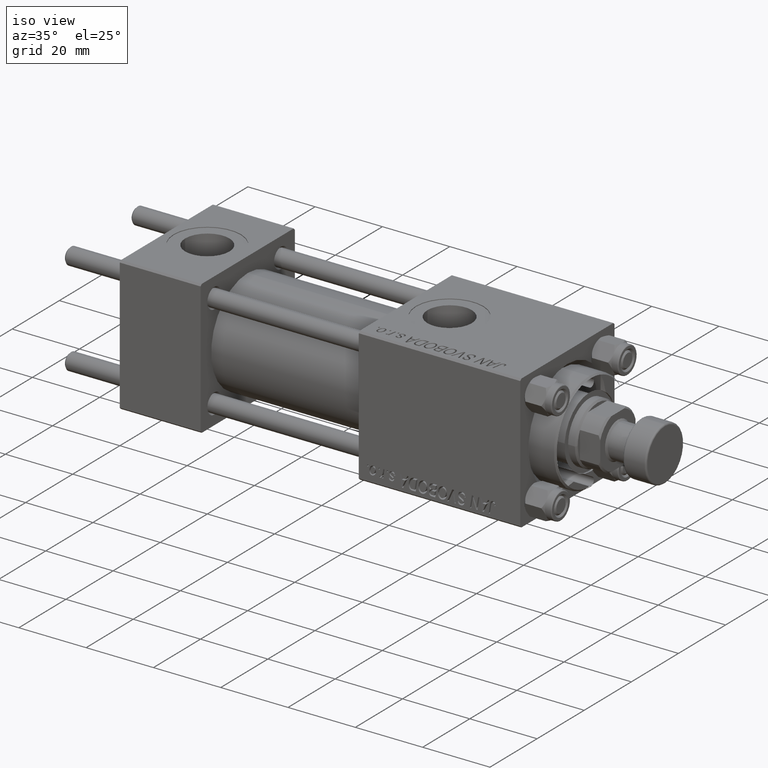
[diagram: clean part render]
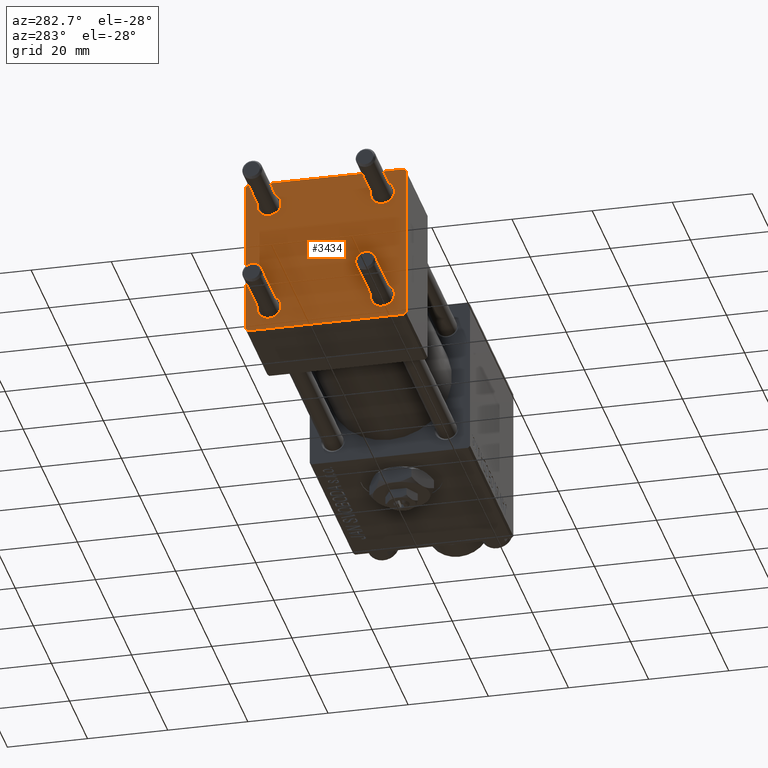
[diagram: tour spotlight — one face highlighted and labeled with its STEP entity id]
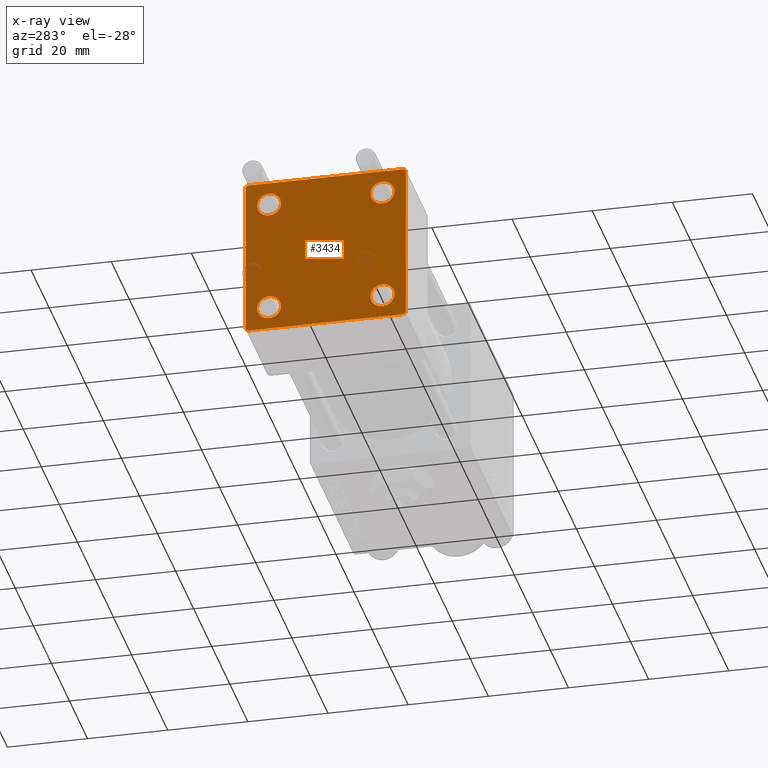
[diagram: x-ray of the same camera — body ghosted, this tour face saturated]
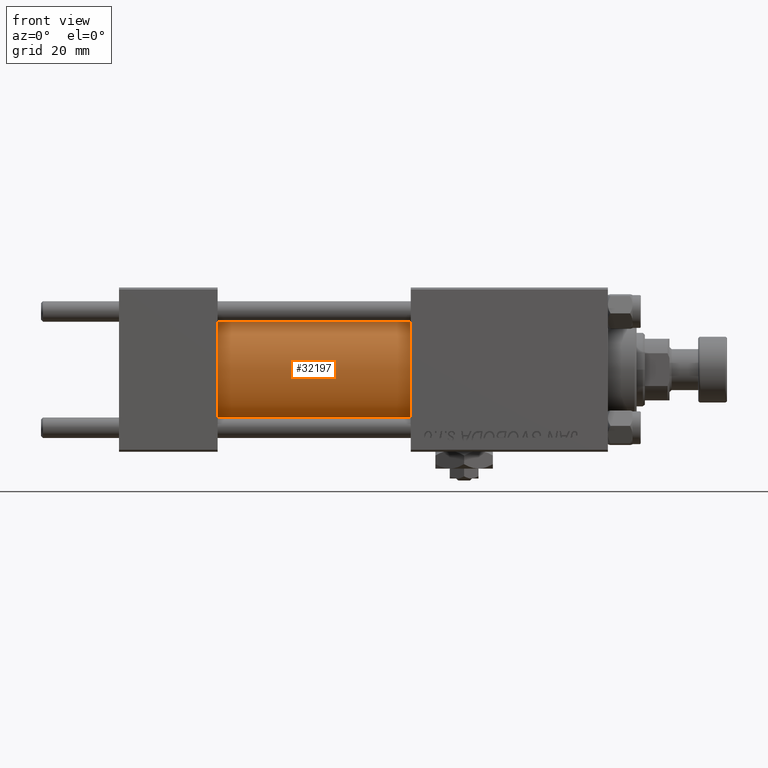
[diagram: tour spotlight — one face highlighted and labeled with its STEP entity id]
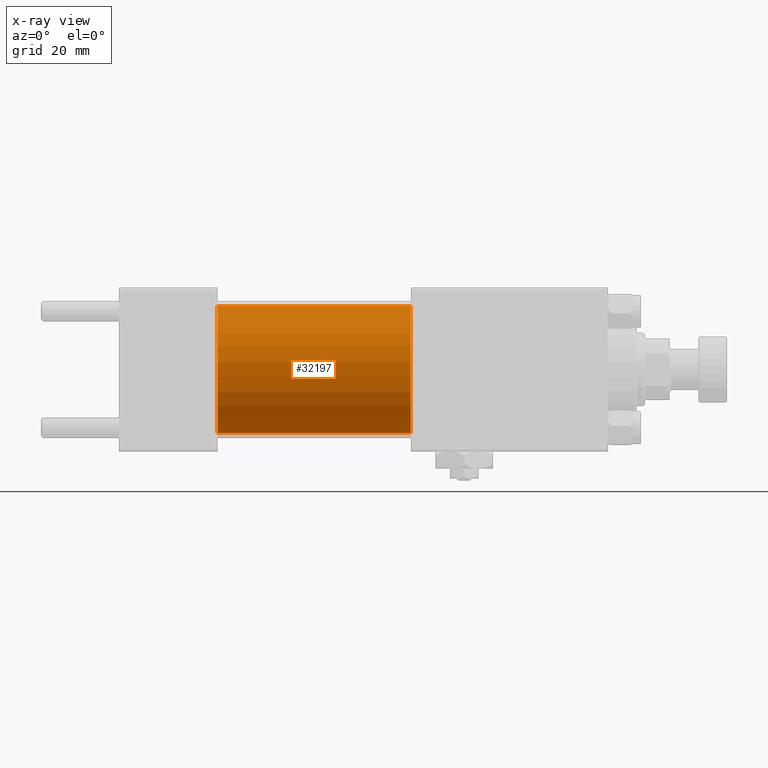
[diagram: x-ray of the same camera — body ghosted, this tour face saturated]
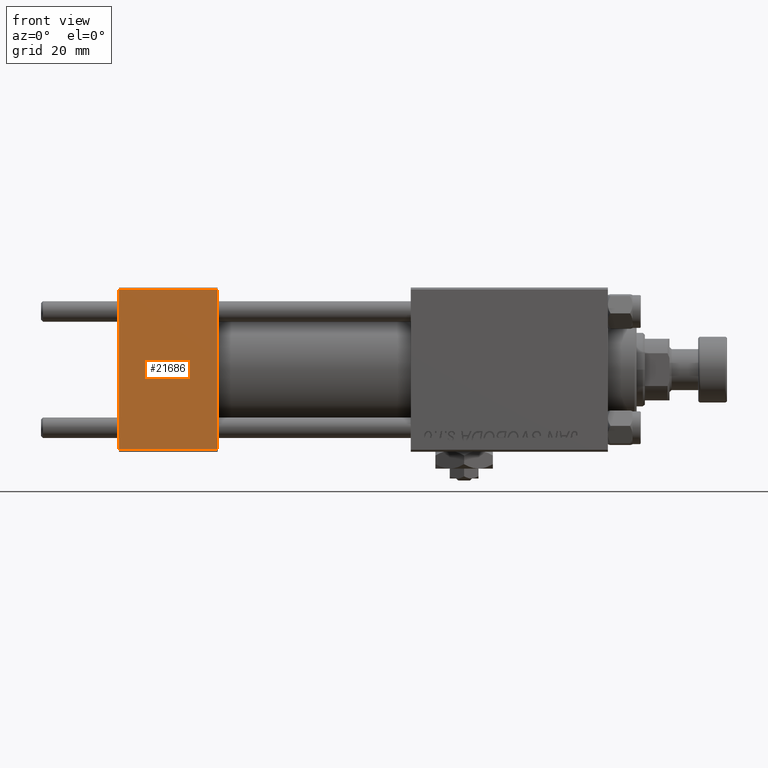
[diagram: tour spotlight — one face highlighted and labeled with its STEP entity id]
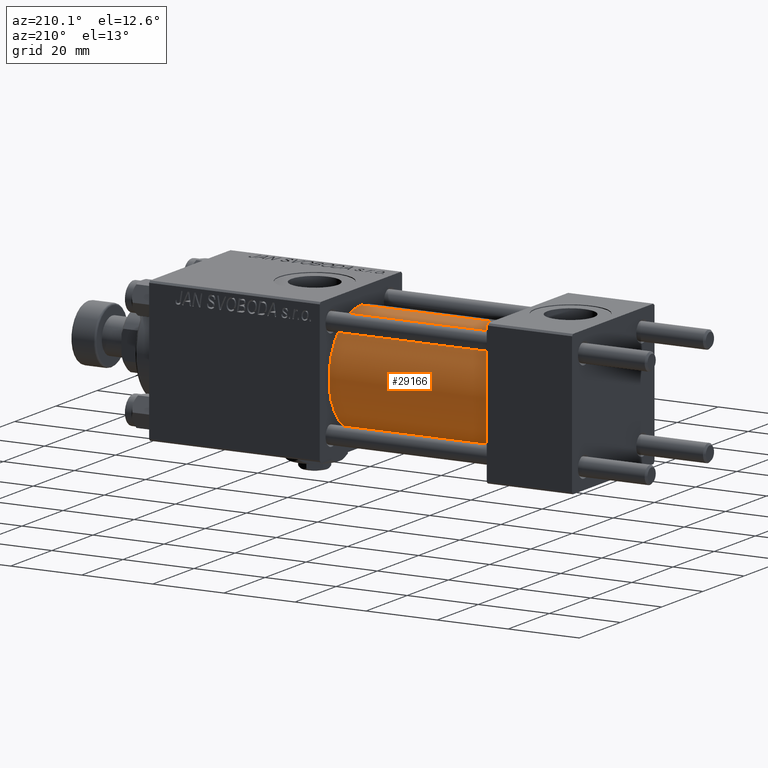
[diagram: tour spotlight — one face highlighted and labeled with its STEP entity id]
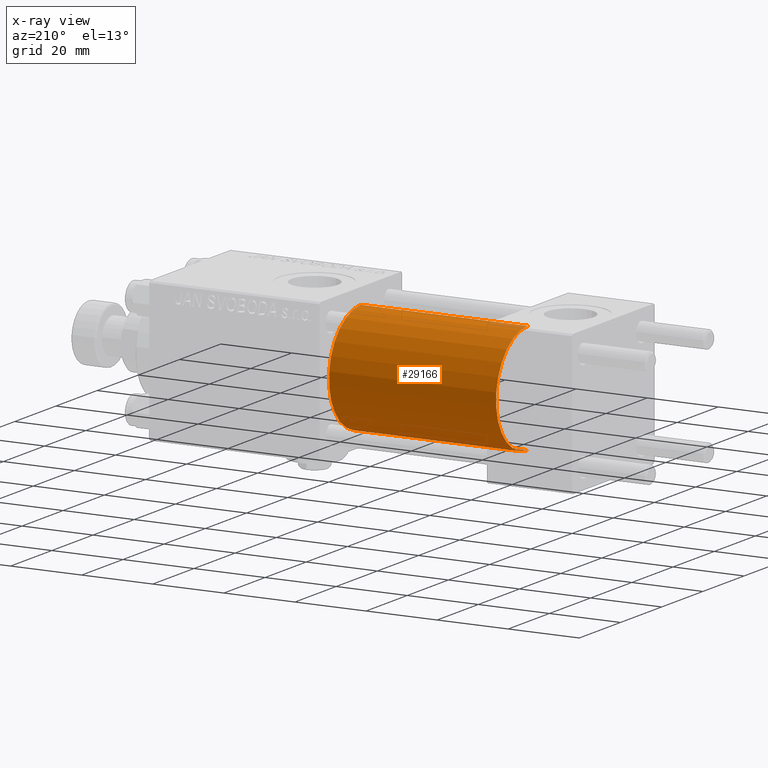
[diagram: x-ray of the same camera — body ghosted, this tour face saturated]
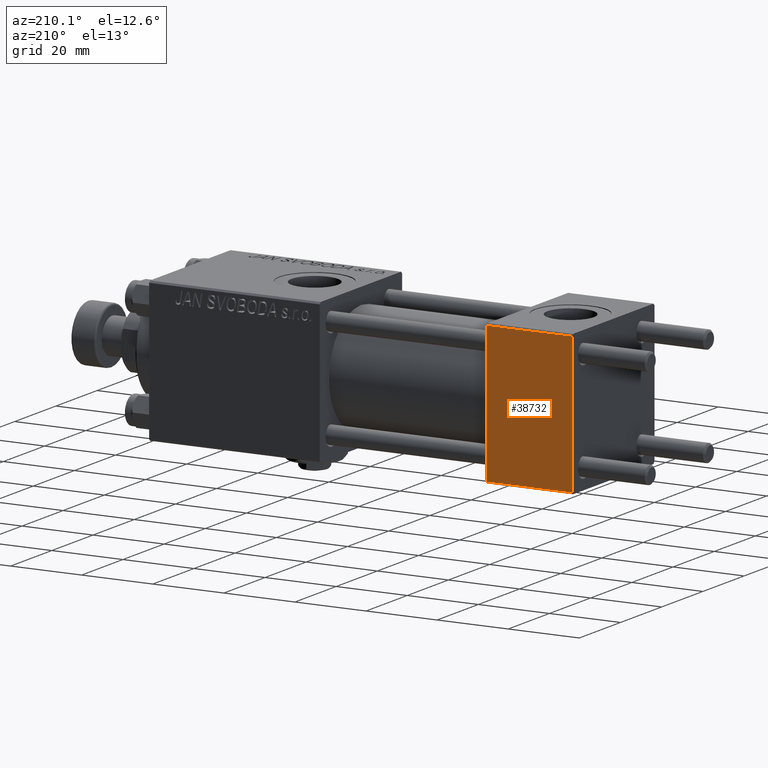
[diagram: tour spotlight — one face highlighted and labeled with its STEP entity id]
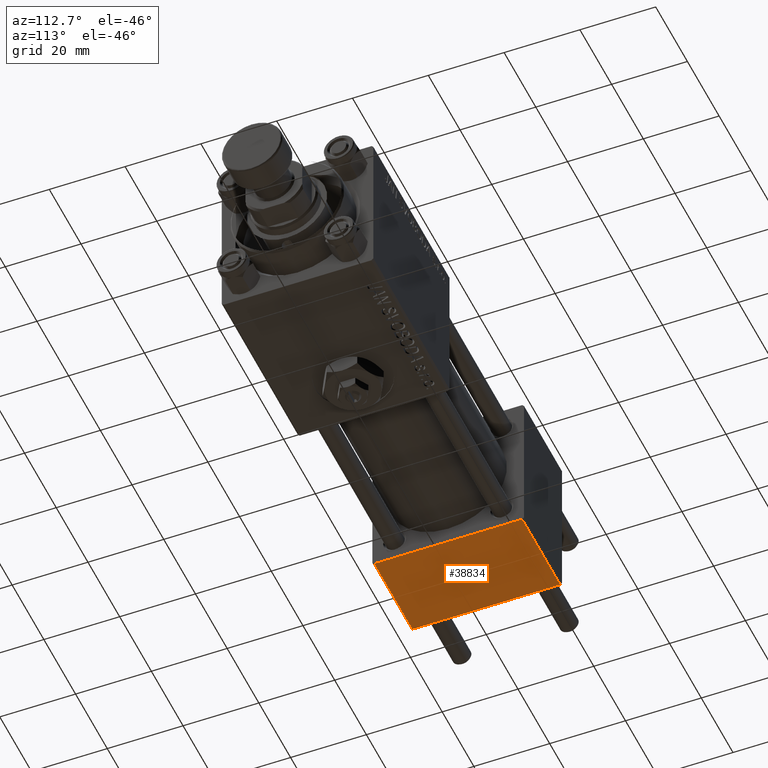
[diagram: tour spotlight — one face highlighted and labeled with its STEP entity id]
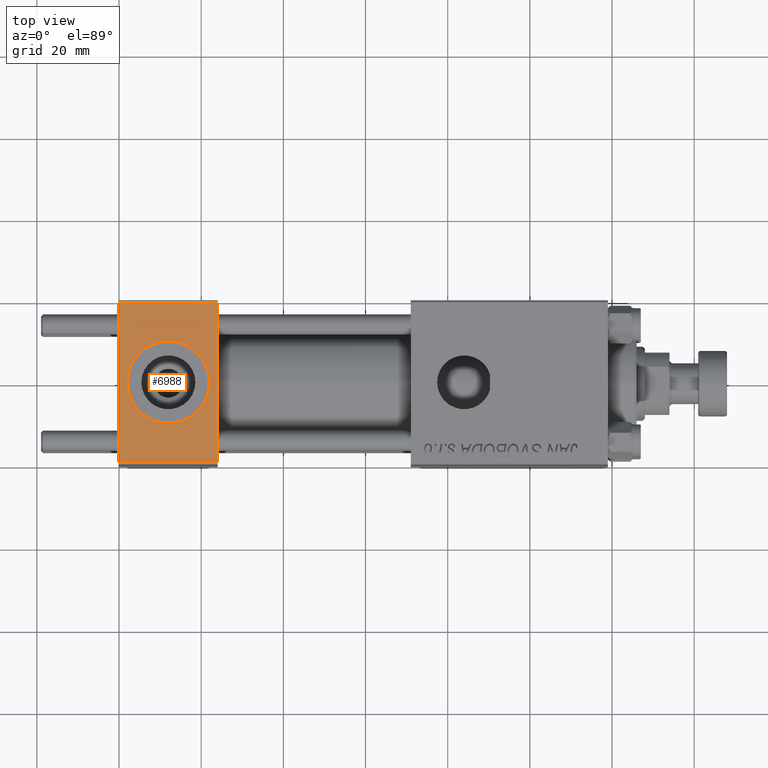
[diagram: tour spotlight — one face highlighted and labeled with its STEP entity id]
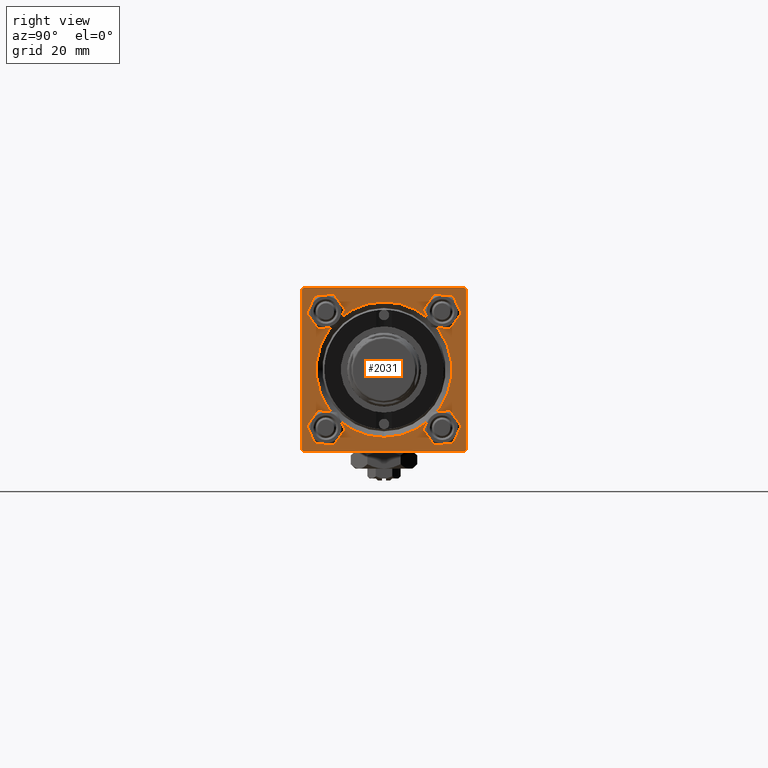
[diagram: tour spotlight — one face highlighted and labeled with its STEP entity id]
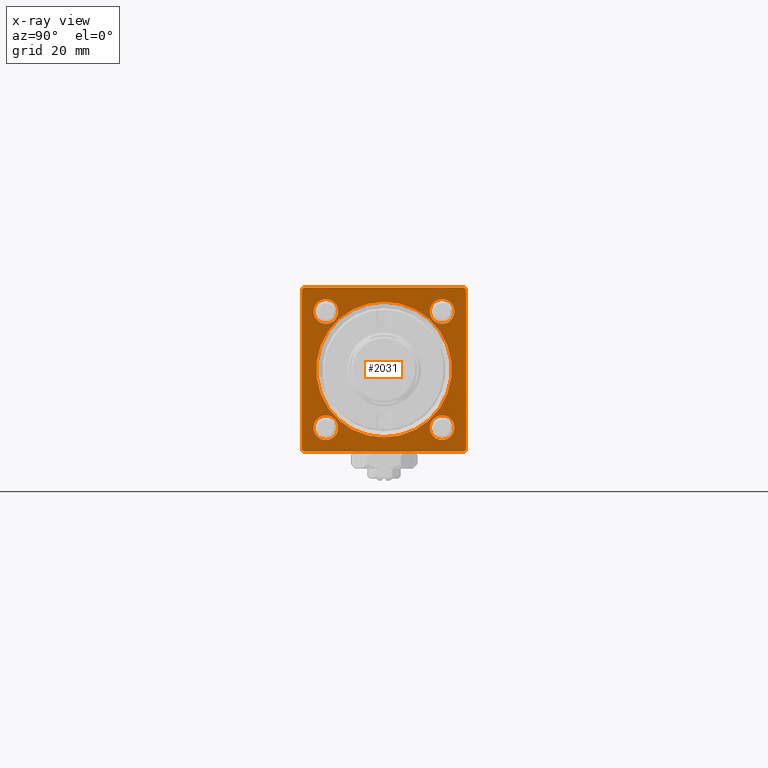
[diagram: x-ray of the same camera — body ghosted, this tour face saturated]
A machine part: a face-by-face anatomy tour. The part has 1195 B-rep faces; the first image is the clean iso view, then the 8 largest visible faces are spotlighted one at a time (largest first), each with its STEP entity span.

Face 1 — auxiliary view, entity #3434. An x-ray twin of the same camera follows (body ghosted, this face saturated) — the face is partly hidden behind the body. In plain terms, the highlighted planar face has unit normal (-1, 0, 0).
Definition (entity closure, byte-faithful):
#278 = DIRECTION ( 'NONE',  ( 0.000000000000000000, 8.673617379884036705E-17, -1.000000000000000000 ) ) ;
#429 = DIRECTION ( 'NONE',  ( 0.000000000000000000, 0.000000000000000000, 1.000000000000000000 ) ) ;
#708 = AXIS2_PLACEMENT_3D ( 'NONE', #1672, #30052, #50326 ) ;
#781 = VERTEX_POINT ( 'NONE', #30972 ) ;
#946 = CARTESIAN_POINT ( 'NONE',  ( 0.000000000000000000, 20.00000000000000000, -19.50000000000002132 ) ) ;
#1019 = CARTESIAN_POINT ( 'NONE',  ( 0.000000000000000000, 14.14999999999999858, -17.15000000000000213 ) ) ;
#1227 = DIRECTION ( 'NONE',  ( 0.000000000000000000, -0.7071067811865401342, 0.7071067811865549002 ) ) ;
#1635 = CARTESIAN_POINT ( 'NONE',  ( 0.000000000000000000, -20.00000000000000355, 19.49999999999998224 ) ) ;
#1672 = CARTESIAN_POINT ( 'NONE',  ( 0.000000000000000000, 14.14999999999999858, -14.15000000000000036 ) ) ;
#1727 = DIRECTION ( 'NONE',  ( 0.000000000000000000, 0.000000000000000000, 1.000000000000000000 ) ) ;
#2555 = PLANE ( 'NONE',  #6607 ) ;
#2779 = EDGE_CURVE ( 'NONE', #781, #41480, #8270, .T. ) ;
#2839 = CARTESIAN_POINT ( 'NONE',  ( -0.000000000000000000, 19.75000000000013500, 19.74999999999986144 ) ) ;
#2843 = AXIS2_PLACEMENT_3D ( 'NONE', #4370, #36436, #429 ) ;
#2906 = ORIENTED_EDGE ( 'NONE', *, *, #50330, .T. ) ;
#3434 = ADVANCED_FACE ( 'NONE', ( #39088, #35151, #44538, #4319, #48503 ), #2555, .T. ) ;
#3933 = ORIENTED_EDGE ( 'NONE', *, *, #28824, .T. ) ;
#4319 = FACE_BOUND ( 'NONE', #52018, .T. ) ;
#4370 = CARTESIAN_POINT ( 'NONE',  ( 0.000000000000000000, 14.14999999999999858, 14.15000000000000036 ) ) ;
#4676 = CARTESIAN_POINT ( 'NONE',  ( 0.000000000000000000, -14.14999999999999503, 14.15000000000000391 ) ) ;
#4777 = CARTESIAN_POINT ( 'NONE',  ( 0.000000000000000000, -14.14999999999999503, 14.15000000000000391 ) ) ;
#5053 = AXIS2_PLACEMENT_3D ( 'NONE', #4676, #48870, #19910 ) ;
#5674 = CARTESIAN_POINT ( 'NONE',  ( 0.000000000000000000, -14.14999999999999503, 17.15000000000000568 ) ) ;
#5819 = VERTEX_POINT ( 'NONE', #946 ) ;
#5879 = ORIENTED_EDGE ( 'NONE', *, *, #28001, .T. ) ;
#6607 = AXIS2_PLACEMENT_3D ( 'NONE', #30685, #8508, #28230 ) ;
#6609 = VECTOR ( 'NONE', #44306, 1000.000000000000000 ) ;
#7145 = ORIENTED_EDGE ( 'NONE', *, *, #15283, .T. ) ;
#7151 = DIRECTION ( 'NONE',  ( 1.000000000000000000, 0.000000000000000000, 0.000000000000000000 ) ) ;
#7175 = VERTEX_POINT ( 'NONE', #25517 ) ;
#7827 = VERTEX_POINT ( 'NONE', #5674 ) ;
#7974 = ORIENTED_EDGE ( 'NONE', *, *, #46510, .T. ) ;
#8014 = LINE ( 'NONE', #28257, #6609 ) ;
#8270 = CIRCLE ( 'NONE', #29237, 3.000000000000000888 ) ;
#8508 = DIRECTION ( 'NONE',  ( -1.000000000000000000, 0.000000000000000000, -0.000000000000000000 ) ) ;
#8596 = CARTESIAN_POINT ( 'NONE',  ( 0.000000000000000000, -19.75000000000020961, -19.74999999999979394 ) ) ;
#9633 = CARTESIAN_POINT ( 'NONE',  ( 0.000000000000000000, -14.14999999999999503, 11.15000000000000213 ) ) ;
#9811 = VERTEX_POINT ( 'NONE', #47578 ) ;
#10254 = ORIENTED_EDGE ( 'NONE', *, *, #19124, .T. ) ;
#12356 = EDGE_CURVE ( 'NONE', #29498, #28053, #50723, .T. ) ;
#12523 = LINE ( 'NONE', #8596, #25494 ) ;
#13764 = CARTESIAN_POINT ( 'NONE',  ( 0.000000000000000000, 20.00000000000000000, -20.00000000000000711 ) ) ;
#13829 = EDGE_CURVE ( 'NONE', #41480, #781, #50760, .T. ) ;
#13942 = CIRCLE ( 'NONE', #50080, 3.000000000000000888 ) ;
#14299 = VERTEX_POINT ( 'NONE', #37190 ) ;
#15283 = EDGE_CURVE ( 'NONE', #40082, #16606, #34032, .T. ) ;
#15468 = LINE ( 'NONE', #35731, #38690 ) ;
#15723 = EDGE_CURVE ( 'NONE', #7175, #18667, #46619, .T. ) ;
#16022 = CARTESIAN_POINT ( 'NONE',  ( 0.000000000000000000, -14.14999999999999503, -17.15000000000000568 ) ) ;
#16190 = VERTEX_POINT ( 'NONE', #20914 ) ;
#16606 = VERTEX_POINT ( 'NONE', #39224 ) ;
#17209 = ORIENTED_EDGE ( 'NONE', *, *, #13829, .T. ) ;
#18667 = VERTEX_POINT ( 'NONE', #1019 ) ;
#18957 = CARTESIAN_POINT ( 'NONE',  ( 0.000000000000000000, 14.14999999999999858, -14.15000000000000036 ) ) ;
#19124 = EDGE_CURVE ( 'NONE', #28053, #29498, #13942, .T. ) ;
#19893 = LINE ( 'NONE', #2839, #50577 ) ;
#19910 = DIRECTION ( 'NONE',  ( 0.000000000000000000, 0.000000000000000000, 1.000000000000000000 ) ) ;
#19940 = ORIENTED_EDGE ( 'NONE', *, *, #12356, .T. ) ;
#20792 = DIRECTION ( 'NONE',  ( 0.000000000000000000, 0.000000000000000000, 1.000000000000000000 ) ) ;
#20914 = CARTESIAN_POINT ( 'NONE',  ( 0.000000000000000000, -20.00000000000000000, -19.49999999999999645 ) ) ;
#21504 = EDGE_LOOP ( 'NONE', ( #45984, #17209 ) ) ;
#21527 = CARTESIAN_POINT ( 'NONE',  ( 0.000000000000000000, -14.14999999999999503, -14.15000000000000391 ) ) ;
#21648 = CARTESIAN_POINT ( 'NONE',  ( 0.000000000000000000, 14.14999999999999858, 11.14999999999999858 ) ) ;
#22432 = EDGE_CURVE ( 'NONE', #36740, #16190, #27872, .T. ) ;
#23638 = ORIENTED_EDGE ( 'NONE', *, *, #44874, .T. ) ;
#24348 = VECTOR ( 'NONE', #29164, 1000.000000000000114 ) ;
#24485 = CARTESIAN_POINT ( 'NONE',  ( 0.000000000000000000, -14.14999999999999503, -14.15000000000000391 ) ) ;
#24501 = AXIS2_PLACEMENT_3D ( 'NONE', #4777, #25515, #20792 ) ;
#25494 = VECTOR ( 'NONE', #1227, 1000.000000000000000 ) ;
#25515 = DIRECTION ( 'NONE',  ( 1.000000000000000000, 0.000000000000000000, 0.000000000000000000 ) ) ;
#25517 = CARTESIAN_POINT ( 'NONE',  ( 0.000000000000000000, 14.14999999999999858, -11.15000000000000036 ) ) ;
#26658 = DIRECTION ( 'NONE',  ( 0.000000000000000000, -1.000000000000000000, 1.734723475976807094E-16 ) ) ;
#26993 = CARTESIAN_POINT ( 'NONE',  ( 0.000000000000000000, 19.50000000000000711, -20.00000000000000711 ) ) ;
#27831 = CIRCLE ( 'NONE', #24501, 3.000000000000000888 ) ;
#27872 = LINE ( 'NONE', #51835, #41676 ) ;
#28001 = EDGE_CURVE ( 'NONE', #18667, #7175, #46909, .T. ) ;
#28053 = VERTEX_POINT ( 'NONE', #21648 ) ;
#28230 = DIRECTION ( 'NONE',  ( -0.000000000000000000, 0.000000000000000000, 1.000000000000000000 ) ) ;
#28257 = CARTESIAN_POINT ( 'NONE',  ( -0.000000000000000000, 19.74999999999986855, -19.75000000000014211 ) ) ;
#28718 = ORIENTED_EDGE ( 'NONE', *, *, #35046, .F. ) ;
#28824 = EDGE_CURVE ( 'NONE', #5819, #40082, #8014, .T. ) ;
#28917 = VECTOR ( 'NONE', #26658, 1000.000000000000000 ) ;
#29164 = DIRECTION ( 'NONE',  ( -0.000000000000000000, 0.7071067811865500152, 0.7071067811865451302 ) ) ;
#29237 = AXIS2_PLACEMENT_3D ( 'NONE', #21527, #37560, #49697 ) ;
#29498 = VERTEX_POINT ( 'NONE', #32020 ) ;
#29580 = ORIENTED_EDGE ( 'NONE', *, *, #41577, .T. ) ;
#29597 = EDGE_LOOP ( 'NONE', ( #32898, #3933, #7145, #2906, #41258, #29580, #28718, #7974 ) ) ;
#30052 = DIRECTION ( 'NONE',  ( 1.000000000000000000, 0.000000000000000000, 0.000000000000000000 ) ) ;
#30390 = EDGE_LOOP ( 'NONE', ( #43914, #5879 ) ) ;
#30685 = CARTESIAN_POINT ( 'NONE',  ( 0.000000000000000000, 0.000000000000000000, 0.000000000000000000 ) ) ;
#30972 = CARTESIAN_POINT ( 'NONE',  ( 0.000000000000000000, -14.14999999999999503, -11.15000000000000391 ) ) ;
#31260 = DIRECTION ( 'NONE',  ( 0.000000000000000000, -1.000000000000000000, -2.602085213965210149E-16 ) ) ;
#32020 = CARTESIAN_POINT ( 'NONE',  ( 0.000000000000000000, 14.14999999999999858, 17.15000000000000568 ) ) ;
#32352 = LINE ( 'NONE', #37059, #24348 ) ;
#32769 = EDGE_LOOP ( 'NONE', ( #42439, #23638 ) ) ;
#32898 = ORIENTED_EDGE ( 'NONE', *, *, #38121, .T. ) ;
#34032 = LINE ( 'NONE', #13764, #28917 ) ;
#35046 = EDGE_CURVE ( 'NONE', #47005, #14299, #50220, .T. ) ;
#35151 = FACE_BOUND ( 'NONE', #21504, .T. ) ;
#35731 = CARTESIAN_POINT ( 'NONE',  ( 0.000000000000000000, 20.00000000000000000, 20.00000000000000000 ) ) ;
#35800 = DIRECTION ( 'NONE',  ( 1.000000000000000000, 0.000000000000000000, 0.000000000000000000 ) ) ;
#36436 = DIRECTION ( 'NONE',  ( 1.000000000000000000, 0.000000000000000000, 0.000000000000000000 ) ) ;
#36596 = VERTEX_POINT ( 'NONE', #9633 ) ;
#36740 = VERTEX_POINT ( 'NONE', #1635 ) ;
#37059 = CARTESIAN_POINT ( 'NONE',  ( -0.000000000000000000, -19.74999999999992539, 19.75000000000006395 ) ) ;
#37190 = CARTESIAN_POINT ( 'NONE',  ( 0.000000000000000000, -19.49999999999999289, 19.99999999999998934 ) ) ;
#37282 = AXIS2_PLACEMENT_3D ( 'NONE', #24485, #35800, #43954 ) ;
#37560 = DIRECTION ( 'NONE',  ( 1.000000000000000000, 0.000000000000000000, 0.000000000000000000 ) ) ;
#37805 = CIRCLE ( 'NONE', #5053, 3.000000000000000888 ) ;
#38121 = EDGE_CURVE ( 'NONE', #9811, #5819, #15468, .T. ) ;
#38690 = VECTOR ( 'NONE', #47842, 1000.000000000000000 ) ;
#39088 = FACE_BOUND ( 'NONE', #32769, .T. ) ;
#39224 = CARTESIAN_POINT ( 'NONE',  ( 0.000000000000000000, -19.50000000000000711, -20.00000000000000000 ) ) ;
#39740 = DIRECTION ( 'NONE',  ( 0.000000000000000000, 0.000000000000000000, 1.000000000000000000 ) ) ;
#40082 = VERTEX_POINT ( 'NONE', #26993 ) ;
#41258 = ORIENTED_EDGE ( 'NONE', *, *, #22432, .F. ) ;
#41480 = VERTEX_POINT ( 'NONE', #16022 ) ;
#41573 = AXIS2_PLACEMENT_3D ( 'NONE', #18957, #7151, #39740 ) ;
#41577 = EDGE_CURVE ( 'NONE', #36740, #14299, #32352, .T. ) ;
#41676 = VECTOR ( 'NONE', #278, 1000.000000000000000 ) ;
#41767 = EDGE_CURVE ( 'NONE', #7827, #36596, #37805, .T. ) ;
#42439 = ORIENTED_EDGE ( 'NONE', *, *, #41767, .T. ) ;
#43914 = ORIENTED_EDGE ( 'NONE', *, *, #15723, .T. ) ;
#43954 = DIRECTION ( 'NONE',  ( 0.000000000000000000, 0.000000000000000000, 1.000000000000000000 ) ) ;
#44306 = DIRECTION ( 'NONE',  ( -0.000000000000000000, -0.7071067811865524577, -0.7071067811865426878 ) ) ;
#44538 = FACE_BOUND ( 'NONE', #30390, .T. ) ;
#44874 = EDGE_CURVE ( 'NONE', #36596, #7827, #27831, .T. ) ;
#45334 = CARTESIAN_POINT ( 'NONE',  ( 0.000000000000000000, 19.50000000000000000, 20.00000000000000000 ) ) ;
#45984 = ORIENTED_EDGE ( 'NONE', *, *, #2779, .T. ) ;
#46510 = EDGE_CURVE ( 'NONE', #47005, #9811, #19893, .T. ) ;
#46519 = CARTESIAN_POINT ( 'NONE',  ( 0.000000000000000000, 20.00000000000000000, 20.00000000000000000 ) ) ;
#46619 = CIRCLE ( 'NONE', #41573, 3.000000000000000888 ) ;
#46909 = CIRCLE ( 'NONE', #708, 3.000000000000000888 ) ;
#47005 = VERTEX_POINT ( 'NONE', #45334 ) ;
#47022 = DIRECTION ( 'NONE',  ( 0.000000000000000000, 0.7071067811865425767, -0.7071067811865525687 ) ) ;
#47578 = CARTESIAN_POINT ( 'NONE',  ( 0.000000000000000000, 20.00000000000000000, 19.49999999999999289 ) ) ;
#47842 = DIRECTION ( 'NONE',  ( 0.000000000000000000, 0.000000000000000000, -1.000000000000000000 ) ) ;
#48503 = FACE_OUTER_BOUND ( 'NONE', #29597, .T. ) ;
#48843 = CARTESIAN_POINT ( 'NONE',  ( 0.000000000000000000, 14.14999999999999858, 14.15000000000000036 ) ) ;
#48870 = DIRECTION ( 'NONE',  ( 1.000000000000000000, 0.000000000000000000, 0.000000000000000000 ) ) ;
#49095 = DIRECTION ( 'NONE',  ( 1.000000000000000000, 0.000000000000000000, 0.000000000000000000 ) ) ;
#49697 = DIRECTION ( 'NONE',  ( 0.000000000000000000, 0.000000000000000000, 1.000000000000000000 ) ) ;
#50080 = AXIS2_PLACEMENT_3D ( 'NONE', #48843, #49095, #1727 ) ;
#50220 = LINE ( 'NONE', #46519, #50524 ) ;
#50326 = DIRECTION ( 'NONE',  ( 0.000000000000000000, 0.000000000000000000, 1.000000000000000000 ) ) ;
#50330 = EDGE_CURVE ( 'NONE', #16606, #16190, #12523, .T. ) ;
#50524 = VECTOR ( 'NONE', #31260, 1000.000000000000000 ) ;
#50577 = VECTOR ( 'NONE', #47022, 999.9999999999998863 ) ;
#50723 = CIRCLE ( 'NONE', #2843, 3.000000000000000888 ) ;
#50760 = CIRCLE ( 'NONE', #37282, 3.000000000000000888 ) ;
#51835 = CARTESIAN_POINT ( 'NONE',  ( 0.000000000000000000, -20.00000000000000355, 19.99999999999998934 ) ) ;
#52018 = EDGE_LOOP ( 'NONE', ( #19940, #10254 ) ) ;

Face 2 — front view, entity #32197. An x-ray twin of the same camera follows (body ghosted, this face saturated) — the face is partly hidden behind the body. In plain terms, the highlighted cylindrical surface (partial cylindrical patch) has radius 15.5 mm, axis along (-1, -0, -0).
Definition (entity closure, byte-faithful):
#104 = CARTESIAN_POINT ( 'NONE',  ( 24.00000000000000000, 1.898202538678397557E-15, -15.50000000000000000 ) ) ;
#3363 = EDGE_CURVE ( 'NONE', #8584, #35960, #10800, .T. ) ;
#3699 = DIRECTION ( 'NONE',  ( -1.000000000000000000, -0.000000000000000000, -0.000000000000000000 ) ) ;
#4490 = LINE ( 'NONE', #4744, #6806 ) ;
#4744 = CARTESIAN_POINT ( 'NONE',  ( 71.00000000000001421, 0.000000000000000000, 15.50000000000000000 ) ) ;
#5764 = ORIENTED_EDGE ( 'NONE', *, *, #34926, .T. ) ;
#6806 = VECTOR ( 'NONE', #3699, 1000.000000000000000 ) ;
#7092 = ORIENTED_EDGE ( 'NONE', *, *, #3363, .F. ) ;
#8201 = VERTEX_POINT ( 'NONE', #38642 ) ;
#8584 = VERTEX_POINT ( 'NONE', #47115 ) ;
#9651 = DIRECTION ( 'NONE',  ( 0.000000000000000000, 0.000000000000000000, -1.000000000000000000 ) ) ;
#10800 = CIRCLE ( 'NONE', #27593, 15.50000000000000000 ) ;
#11923 = CARTESIAN_POINT ( 'NONE',  ( 71.00000000000001421, 1.898202538678397557E-15, -15.50000000000000000 ) ) ;
#13923 = ORIENTED_EDGE ( 'NONE', *, *, #31875, .T. ) ;
#17663 = DIRECTION ( 'NONE',  ( 0.000000000000000000, 0.000000000000000000, 1.000000000000000000 ) ) ;
#18299 = DIRECTION ( 'NONE',  ( 1.000000000000000000, 0.000000000000000000, 0.000000000000000000 ) ) ;
#21633 = CARTESIAN_POINT ( 'NONE',  ( 71.00000000000001421, 0.000000000000000000, 0.000000000000000000 ) ) ;
#22662 = DIRECTION ( 'NONE',  ( -1.000000000000000000, -0.000000000000000000, -0.000000000000000000 ) ) ;
#23762 = CARTESIAN_POINT ( 'NONE',  ( 24.00000000000000000, 0.000000000000000000, 0.000000000000000000 ) ) ;
#24229 = VERTEX_POINT ( 'NONE', #104 ) ;
#26611 = CYLINDRICAL_SURFACE ( 'NONE', #46231, 15.50000000000000000 ) ;
#27459 = DIRECTION ( 'NONE',  ( 1.000000000000000000, 0.000000000000000000, 0.000000000000000000 ) ) ;
#27593 = AXIS2_PLACEMENT_3D ( 'NONE', #30163, #18299, #9651 ) ;
#27717 = DIRECTION ( 'NONE',  ( -1.000000000000000000, -0.000000000000000000, -0.000000000000000000 ) ) ;
#27971 = DIRECTION ( 'NONE',  ( 0.000000000000000000, 0.000000000000000000, 1.000000000000000000 ) ) ;
#29980 = ORIENTED_EDGE ( 'NONE', *, *, #44459, .F. ) ;
#30163 = CARTESIAN_POINT ( 'NONE',  ( 71.00000000000001421, 0.000000000000000000, 0.000000000000000000 ) ) ;
#31875 = EDGE_CURVE ( 'NONE', #8201, #24229, #31888, .T. ) ;
#31888 = CIRCLE ( 'NONE', #45326, 15.50000000000000000 ) ;
#32012 = VECTOR ( 'NONE', #27717, 1000.000000000000000 ) ;
#32197 = ADVANCED_FACE ( 'NONE', ( #42658 ), #26611, .T. ) ;
#34926 = EDGE_CURVE ( 'NONE', #8584, #8201, #4490, .T. ) ;
#35960 = VERTEX_POINT ( 'NONE', #40244 ) ;
#38642 = CARTESIAN_POINT ( 'NONE',  ( 24.00000000000000000, 0.000000000000000000, 15.50000000000000000 ) ) ;
#40244 = CARTESIAN_POINT ( 'NONE',  ( 71.00000000000001421, 1.898202538678397557E-15, -15.50000000000000000 ) ) ;
#42658 = FACE_OUTER_BOUND ( 'NONE', #47740, .T. ) ;
#44459 = EDGE_CURVE ( 'NONE', #35960, #24229, #47464, .T. ) ;
#45326 = AXIS2_PLACEMENT_3D ( 'NONE', #23762, #27459, #27971 ) ;
#46231 = AXIS2_PLACEMENT_3D ( 'NONE', #21633, #22662, #17663 ) ;
#47115 = CARTESIAN_POINT ( 'NONE',  ( 71.00000000000001421, 0.000000000000000000, 15.50000000000000000 ) ) ;
#47464 = LINE ( 'NONE', #11923, #32012 ) ;
#47740 = EDGE_LOOP ( 'NONE', ( #29980, #7092, #5764, #13923 ) ) ;

Face 3 — front view, entity #21686. In plain terms, the highlighted planar face has unit normal (0, 1, 0).
Definition (entity closure, byte-faithful):
#125 = PLANE ( 'NONE',  #30712 ) ;
#278 = DIRECTION ( 'NONE',  ( 0.000000000000000000, 8.673617379884036705E-17, -1.000000000000000000 ) ) ;
#614 = ORIENTED_EDGE ( 'NONE', *, *, #17513, .T. ) ;
#651 = EDGE_CURVE ( 'NONE', #35162, #36740, #3232, .T. ) ;
#1635 = CARTESIAN_POINT ( 'NONE',  ( 0.000000000000000000, -20.00000000000000355, 19.49999999999998224 ) ) ;
#1840 = LINE ( 'NONE', #17073, #39089 ) ;
#3232 = LINE ( 'NONE', #19247, #42649 ) ;
#8771 = FACE_OUTER_BOUND ( 'NONE', #24687, .T. ) ;
#12623 = ORIENTED_EDGE ( 'NONE', *, *, #651, .T. ) ;
#14021 = CARTESIAN_POINT ( 'NONE',  ( 24.00000000000000000, -20.00000000000000000, -19.49999999999999645 ) ) ;
#14802 = CARTESIAN_POINT ( 'NONE',  ( 24.00000000000000000, -20.00000000000000355, 19.99999999999998934 ) ) ;
#15375 = EDGE_CURVE ( 'NONE', #35162, #40289, #20060, .T. ) ;
#16121 = CARTESIAN_POINT ( 'NONE',  ( 24.00000000000000000, -20.00000000000000355, 19.99999999999998934 ) ) ;
#16190 = VERTEX_POINT ( 'NONE', #20914 ) ;
#17073 = CARTESIAN_POINT ( 'NONE',  ( 24.00000000000000000, -20.00000000000000000, -19.49999999999999645 ) ) ;
#17513 = EDGE_CURVE ( 'NONE', #16190, #40289, #1840, .T. ) ;
#19247 = CARTESIAN_POINT ( 'NONE',  ( 24.00000000000000000, -20.00000000000000355, 19.49999999999998224 ) ) ;
#20060 = LINE ( 'NONE', #14802, #36473 ) ;
#20858 = DIRECTION ( 'NONE',  ( 0.000000000000000000, -8.673617379884036705E-17, 1.000000000000000000 ) ) ;
#20914 = CARTESIAN_POINT ( 'NONE',  ( 0.000000000000000000, -20.00000000000000000, -19.49999999999999645 ) ) ;
#21686 = ADVANCED_FACE ( 'NONE', ( #8771 ), #125, .F. ) ;
#22402 = ORIENTED_EDGE ( 'NONE', *, *, #15375, .F. ) ;
#22432 = EDGE_CURVE ( 'NONE', #36740, #16190, #27872, .T. ) ;
#24687 = EDGE_LOOP ( 'NONE', ( #38472, #614, #22402, #12623 ) ) ;
#27872 = LINE ( 'NONE', #51835, #41676 ) ;
#30712 = AXIS2_PLACEMENT_3D ( 'NONE', #16121, #40851, #20858 ) ;
#30874 = DIRECTION ( 'NONE',  ( 0.000000000000000000, 8.673617379884036705E-17, -1.000000000000000000 ) ) ;
#33126 = DIRECTION ( 'NONE',  ( 1.000000000000000000, 0.000000000000000000, 0.000000000000000000 ) ) ;
#34668 = CARTESIAN_POINT ( 'NONE',  ( 24.00000000000000000, -20.00000000000000355, 19.49999999999998224 ) ) ;
#35162 = VERTEX_POINT ( 'NONE', #34668 ) ;
#36473 = VECTOR ( 'NONE', #30874, 1000.000000000000000 ) ;
#36740 = VERTEX_POINT ( 'NONE', #1635 ) ;
#38472 = ORIENTED_EDGE ( 'NONE', *, *, #22432, .T. ) ;
#39089 = VECTOR ( 'NONE', #33126, 1000.000000000000000 ) ;
#40289 = VERTEX_POINT ( 'NONE', #14021 ) ;
#40851 = DIRECTION ( 'NONE',  ( -0.000000000000000000, 1.000000000000000000, 8.673617379884036705E-17 ) ) ;
#41676 = VECTOR ( 'NONE', #278, 1000.000000000000000 ) ;
#42649 = VECTOR ( 'NONE', #43722, 1000.000000000000000 ) ;
#43722 = DIRECTION ( 'NONE',  ( -1.000000000000000000, 0.000000000000000000, 0.000000000000000000 ) ) ;
#51835 = CARTESIAN_POINT ( 'NONE',  ( 0.000000000000000000, -20.00000000000000355, 19.99999999999998934 ) ) ;

Face 4 — auxiliary view, entity #29166. An x-ray twin of the same camera follows (body ghosted, this face saturated) — the face is partly hidden behind the body. In plain terms, the highlighted cylindrical surface (partial cylindrical patch) has radius 15.5 mm, axis along (-1, -0, -0).
Definition (entity closure, byte-faithful):
#104 = CARTESIAN_POINT ( 'NONE',  ( 24.00000000000000000, 1.898202538678397557E-15, -15.50000000000000000 ) ) ;
#127 = ORIENTED_EDGE ( 'NONE', *, *, #44459, .T. ) ;
#1586 = AXIS2_PLACEMENT_3D ( 'NONE', #47361, #2918, #3179 ) ;
#2283 = EDGE_CURVE ( 'NONE', #24229, #8201, #40177, .T. ) ;
#2587 = ORIENTED_EDGE ( 'NONE', *, *, #20574, .F. ) ;
#2918 = DIRECTION ( 'NONE',  ( -1.000000000000000000, -0.000000000000000000, -0.000000000000000000 ) ) ;
#3179 = DIRECTION ( 'NONE',  ( 0.000000000000000000, 0.000000000000000000, 1.000000000000000000 ) ) ;
#3699 = DIRECTION ( 'NONE',  ( -1.000000000000000000, -0.000000000000000000, -0.000000000000000000 ) ) ;
#4490 = LINE ( 'NONE', #4744, #6806 ) ;
#4744 = CARTESIAN_POINT ( 'NONE',  ( 71.00000000000001421, 0.000000000000000000, 15.50000000000000000 ) ) ;
#6806 = VECTOR ( 'NONE', #3699, 1000.000000000000000 ) ;
#8201 = VERTEX_POINT ( 'NONE', #38642 ) ;
#8584 = VERTEX_POINT ( 'NONE', #47115 ) ;
#8803 = ORIENTED_EDGE ( 'NONE', *, *, #34926, .F. ) ;
#10625 = CIRCLE ( 'NONE', #31635, 15.50000000000000000 ) ;
#10940 = DIRECTION ( 'NONE',  ( 0.000000000000000000, 0.000000000000000000, -1.000000000000000000 ) ) ;
#11046 = CYLINDRICAL_SURFACE ( 'NONE', #1586, 15.50000000000000000 ) ;
#11923 = CARTESIAN_POINT ( 'NONE',  ( 71.00000000000001421, 1.898202538678397557E-15, -15.50000000000000000 ) ) ;
#18820 = CARTESIAN_POINT ( 'NONE',  ( 71.00000000000001421, 0.000000000000000000, 0.000000000000000000 ) ) ;
#19520 = CARTESIAN_POINT ( 'NONE',  ( 24.00000000000000000, 0.000000000000000000, 0.000000000000000000 ) ) ;
#20574 = EDGE_CURVE ( 'NONE', #35960, #8584, #10625, .T. ) ;
#24229 = VERTEX_POINT ( 'NONE', #104 ) ;
#27717 = DIRECTION ( 'NONE',  ( -1.000000000000000000, -0.000000000000000000, -0.000000000000000000 ) ) ;
#29166 = ADVANCED_FACE ( 'NONE', ( #42616 ), #11046, .T. ) ;
#31635 = AXIS2_PLACEMENT_3D ( 'NONE', #18820, #31721, #10940 ) ;
#31721 = DIRECTION ( 'NONE',  ( 1.000000000000000000, 0.000000000000000000, 0.000000000000000000 ) ) ;
#32012 = VECTOR ( 'NONE', #27717, 1000.000000000000000 ) ;
#34926 = EDGE_CURVE ( 'NONE', #8584, #8201, #4490, .T. ) ;
#35960 = VERTEX_POINT ( 'NONE', #40244 ) ;
#38642 = CARTESIAN_POINT ( 'NONE',  ( 24.00000000000000000, 0.000000000000000000, 15.50000000000000000 ) ) ;
#40177 = CIRCLE ( 'NONE', #46040, 15.50000000000000000 ) ;
#40244 = CARTESIAN_POINT ( 'NONE',  ( 71.00000000000001421, 1.898202538678397557E-15, -15.50000000000000000 ) ) ;
#42616 = FACE_OUTER_BOUND ( 'NONE', #46690, .T. ) ;
#44459 = EDGE_CURVE ( 'NONE', #35960, #24229, #47464, .T. ) ;
#46040 = AXIS2_PLACEMENT_3D ( 'NONE', #19520, #47168, #46643 ) ;
#46643 = DIRECTION ( 'NONE',  ( 0.000000000000000000, 0.000000000000000000, 1.000000000000000000 ) ) ;
#46690 = EDGE_LOOP ( 'NONE', ( #2587, #127, #51678, #8803 ) ) ;
#47115 = CARTESIAN_POINT ( 'NONE',  ( 71.00000000000001421, 0.000000000000000000, 15.50000000000000000 ) ) ;
#47168 = DIRECTION ( 'NONE',  ( 1.000000000000000000, 0.000000000000000000, 0.000000000000000000 ) ) ;
#47361 = CARTESIAN_POINT ( 'NONE',  ( 71.00000000000001421, 0.000000000000000000, 0.000000000000000000 ) ) ;
#47464 = LINE ( 'NONE', #11923, #32012 ) ;
#51678 = ORIENTED_EDGE ( 'NONE', *, *, #2283, .T. ) ;

Face 5 — auxiliary view, entity #38732. In plain terms, the highlighted planar face has unit normal (0, 1, 0).
Definition (entity closure, byte-faithful):
#946 = CARTESIAN_POINT ( 'NONE',  ( 0.000000000000000000, 20.00000000000000000, -19.50000000000002132 ) ) ;
#2327 = CARTESIAN_POINT ( 'NONE',  ( 24.00000000000000000, 20.00000000000000000, -19.50000000000002132 ) ) ;
#5101 = EDGE_CURVE ( 'NONE', #9811, #19560, #13021, .T. ) ;
#5819 = VERTEX_POINT ( 'NONE', #946 ) ;
#7857 = ORIENTED_EDGE ( 'NONE', *, *, #51177, .T. ) ;
#8384 = LINE ( 'NONE', #28109, #39958 ) ;
#9811 = VERTEX_POINT ( 'NONE', #47578 ) ;
#13021 = LINE ( 'NONE', #25400, #47735 ) ;
#13435 = ORIENTED_EDGE ( 'NONE', *, *, #18588, .T. ) ;
#15468 = LINE ( 'NONE', #35731, #38690 ) ;
#18588 = EDGE_CURVE ( 'NONE', #19560, #36064, #8384, .T. ) ;
#18872 = DIRECTION ( 'NONE',  ( -0.000000000000000000, 1.000000000000000000, 0.000000000000000000 ) ) ;
#19560 = VERTEX_POINT ( 'NONE', #24163 ) ;
#20673 = DIRECTION ( 'NONE',  ( 1.000000000000000000, 0.000000000000000000, 0.000000000000000000 ) ) ;
#22831 = CARTESIAN_POINT ( 'NONE',  ( 24.00000000000000000, 20.00000000000000000, 20.00000000000000000 ) ) ;
#24163 = CARTESIAN_POINT ( 'NONE',  ( 24.00000000000000000, 20.00000000000000000, 19.49999999999999289 ) ) ;
#25400 = CARTESIAN_POINT ( 'NONE',  ( 24.00000000000000000, 20.00000000000000000, 19.49999999999999289 ) ) ;
#26363 = VECTOR ( 'NONE', #37561, 1000.000000000000000 ) ;
#26516 = FACE_OUTER_BOUND ( 'NONE', #46449, .T. ) ;
#28109 = CARTESIAN_POINT ( 'NONE',  ( 24.00000000000000000, 20.00000000000000000, 20.00000000000000000 ) ) ;
#33129 = ORIENTED_EDGE ( 'NONE', *, *, #5101, .T. ) ;
#33159 = ORIENTED_EDGE ( 'NONE', *, *, #38121, .F. ) ;
#34924 = DIRECTION ( 'NONE',  ( 0.000000000000000000, -0.000000000000000000, 1.000000000000000000 ) ) ;
#35731 = CARTESIAN_POINT ( 'NONE',  ( 0.000000000000000000, 20.00000000000000000, 20.00000000000000000 ) ) ;
#36064 = VERTEX_POINT ( 'NONE', #45222 ) ;
#37561 = DIRECTION ( 'NONE',  ( -1.000000000000000000, 0.000000000000000000, 0.000000000000000000 ) ) ;
#38121 = EDGE_CURVE ( 'NONE', #9811, #5819, #15468, .T. ) ;
#38690 = VECTOR ( 'NONE', #47842, 1000.000000000000000 ) ;
#38732 = ADVANCED_FACE ( 'NONE', ( #26516 ), #42561, .T. ) ;
#39958 = VECTOR ( 'NONE', #43892, 1000.000000000000000 ) ;
#40541 = AXIS2_PLACEMENT_3D ( 'NONE', #22831, #18872, #34924 ) ;
#40754 = LINE ( 'NONE', #2327, #26363 ) ;
#42561 = PLANE ( 'NONE',  #40541 ) ;
#43892 = DIRECTION ( 'NONE',  ( 0.000000000000000000, 0.000000000000000000, -1.000000000000000000 ) ) ;
#45222 = CARTESIAN_POINT ( 'NONE',  ( 24.00000000000000000, 20.00000000000000000, -19.50000000000002132 ) ) ;
#46449 = EDGE_LOOP ( 'NONE', ( #13435, #7857, #33159, #33129 ) ) ;
#47578 = CARTESIAN_POINT ( 'NONE',  ( 0.000000000000000000, 20.00000000000000000, 19.49999999999999289 ) ) ;
#47735 = VECTOR ( 'NONE', #20673, 1000.000000000000000 ) ;
#47842 = DIRECTION ( 'NONE',  ( 0.000000000000000000, 0.000000000000000000, -1.000000000000000000 ) ) ;
#51177 = EDGE_CURVE ( 'NONE', #36064, #5819, #40754, .T. ) ;

Face 6 — auxiliary view, entity #38834. In plain terms, the highlighted planar face has unit normal (0, -0, -1).
Definition (entity closure, byte-faithful):
#218 = DIRECTION ( 'NONE',  ( 0.000000000000000000, -1.734723475976806848E-16, -1.000000000000000000 ) ) ;
#991 = DIRECTION ( 'NONE',  ( 0.000000000000000000, 1.000000000000000000, -1.734723475976806848E-16 ) ) ;
#1431 = LINE ( 'NONE', #5382, #33985 ) ;
#5124 = DIRECTION ( 'NONE',  ( 0.000000000000000000, -1.000000000000000000, 1.734723475976807094E-16 ) ) ;
#5382 = CARTESIAN_POINT ( 'NONE',  ( 24.00000000000000000, 20.00000000000000000, -20.00000000000000711 ) ) ;
#6097 = LINE ( 'NONE', #18951, #7614 ) ;
#7575 = VERTEX_POINT ( 'NONE', #38313 ) ;
#7614 = VECTOR ( 'NONE', #46858, 1000.000000000000000 ) ;
#8932 = VECTOR ( 'NONE', #42126, 1000.000000000000000 ) ;
#9775 = CARTESIAN_POINT ( 'NONE',  ( 24.00000000000000000, 19.50000000000000711, -20.00000000000000711 ) ) ;
#9998 = VERTEX_POINT ( 'NONE', #13571 ) ;
#11364 = EDGE_CURVE ( 'NONE', #9998, #7575, #1431, .T. ) ;
#13571 = CARTESIAN_POINT ( 'NONE',  ( 24.00000000000000000, 19.50000000000000711, -20.00000000000000711 ) ) ;
#13764 = CARTESIAN_POINT ( 'NONE',  ( 0.000000000000000000, 20.00000000000000000, -20.00000000000000711 ) ) ;
#14438 = ORIENTED_EDGE ( 'NONE', *, *, #11364, .T. ) ;
#15283 = EDGE_CURVE ( 'NONE', #40082, #16606, #34032, .T. ) ;
#15787 = ORIENTED_EDGE ( 'NONE', *, *, #43377, .T. ) ;
#16606 = VERTEX_POINT ( 'NONE', #39224 ) ;
#18694 = AXIS2_PLACEMENT_3D ( 'NONE', #24907, #218, #991 ) ;
#18951 = CARTESIAN_POINT ( 'NONE',  ( 0.000000000000000000, -19.50000000000000711, -20.00000000000000000 ) ) ;
#21186 = EDGE_LOOP ( 'NONE', ( #40030, #51428, #14438, #15787 ) ) ;
#24390 = FACE_OUTER_BOUND ( 'NONE', #21186, .T. ) ;
#24441 = EDGE_CURVE ( 'NONE', #40082, #9998, #49782, .T. ) ;
#24907 = CARTESIAN_POINT ( 'NONE',  ( 24.00000000000000000, 20.00000000000000000, -20.00000000000000711 ) ) ;
#26658 = DIRECTION ( 'NONE',  ( 0.000000000000000000, -1.000000000000000000, 1.734723475976807094E-16 ) ) ;
#26993 = CARTESIAN_POINT ( 'NONE',  ( 0.000000000000000000, 19.50000000000000711, -20.00000000000000711 ) ) ;
#28917 = VECTOR ( 'NONE', #26658, 1000.000000000000000 ) ;
#32802 = PLANE ( 'NONE',  #18694 ) ;
#33985 = VECTOR ( 'NONE', #5124, 1000.000000000000000 ) ;
#34032 = LINE ( 'NONE', #13764, #28917 ) ;
#38313 = CARTESIAN_POINT ( 'NONE',  ( 24.00000000000000000, -19.50000000000000711, -20.00000000000000000 ) ) ;
#38834 = ADVANCED_FACE ( 'NONE', ( #24390 ), #32802, .T. ) ;
#39224 = CARTESIAN_POINT ( 'NONE',  ( 0.000000000000000000, -19.50000000000000711, -20.00000000000000000 ) ) ;
#40030 = ORIENTED_EDGE ( 'NONE', *, *, #15283, .F. ) ;
#40082 = VERTEX_POINT ( 'NONE', #26993 ) ;
#42126 = DIRECTION ( 'NONE',  ( 1.000000000000000000, 0.000000000000000000, 0.000000000000000000 ) ) ;
#43377 = EDGE_CURVE ( 'NONE', #7575, #16606, #6097, .T. ) ;
#46858 = DIRECTION ( 'NONE',  ( -1.000000000000000000, 0.000000000000000000, 0.000000000000000000 ) ) ;
#49782 = LINE ( 'NONE', #9775, #8932 ) ;
#51428 = ORIENTED_EDGE ( 'NONE', *, *, #24441, .T. ) ;

Face 7 — top view, entity #6988. In plain terms, the highlighted planar face has unit normal (0, 0, -1).
Definition (entity closure, byte-faithful):
#100 = VECTOR ( 'NONE', #8422, 1000.000000000000000 ) ;
#1207 = EDGE_CURVE ( 'NONE', #16564, #47005, #10906, .T. ) ;
#1266 = VERTEX_POINT ( 'NONE', #39305 ) ;
#2139 = DIRECTION ( 'NONE',  ( 0.000000000000000000, 0.000000000000000000, 1.000000000000000000 ) ) ;
#2778 = CARTESIAN_POINT ( 'NONE',  ( 0.000000000000000000, 19.50000000000000000, 20.00000000000000000 ) ) ;
#3229 = ORIENTED_EDGE ( 'NONE', *, *, #34907, .F. ) ;
#6343 = CARTESIAN_POINT ( 'NONE',  ( 12.00000000000000000, 1.540743955509788682E-30, 19.99999999999999645 ) ) ;
#6988 = ADVANCED_FACE ( 'NONE', ( #38705, #18444 ), #19237, .F. ) ;
#8422 = DIRECTION ( 'NONE',  ( 0.000000000000000000, -1.000000000000000000, -2.602085213965210149E-16 ) ) ;
#10165 = EDGE_LOOP ( 'NONE', ( #15577, #21062 ) ) ;
#10566 = CARTESIAN_POINT ( 'NONE',  ( 24.00000000000000000, 20.00000000000000000, 20.00000000000000000 ) ) ;
#10906 = LINE ( 'NONE', #2778, #25007 ) ;
#11261 = AXIS2_PLACEMENT_3D ( 'NONE', #6343, #2139, #38671 ) ;
#13692 = LINE ( 'NONE', #29761, #46227 ) ;
#14299 = VERTEX_POINT ( 'NONE', #37190 ) ;
#14487 = CARTESIAN_POINT ( 'NONE',  ( 24.00000000000000000, 19.50000000000000000, 20.00000000000000000 ) ) ;
#15577 = ORIENTED_EDGE ( 'NONE', *, *, #51934, .F. ) ;
#16564 = VERTEX_POINT ( 'NONE', #14487 ) ;
#17127 = ORIENTED_EDGE ( 'NONE', *, *, #36875, .T. ) ;
#18271 = EDGE_CURVE ( 'NONE', #26640, #1266, #42470, .T. ) ;
#18323 = AXIS2_PLACEMENT_3D ( 'NONE', #10566, #46882, #46621 ) ;
#18444 = FACE_OUTER_BOUND ( 'NONE', #25961, .T. ) ;
#18529 = DIRECTION ( 'NONE',  ( -1.000000000000000000, 0.000000000000000000, 0.000000000000000000 ) ) ;
#19237 = PLANE ( 'NONE',  #18323 ) ;
#19782 = AXIS2_PLACEMENT_3D ( 'NONE', #44741, #51867, #48961 ) ;
#21062 = ORIENTED_EDGE ( 'NONE', *, *, #18271, .F. ) ;
#25007 = VECTOR ( 'NONE', #18529, 1000.000000000000000 ) ;
#25961 = EDGE_LOOP ( 'NONE', ( #44523, #17127, #3229, #26774 ) ) ;
#26640 = VERTEX_POINT ( 'NONE', #30594 ) ;
#26774 = ORIENTED_EDGE ( 'NONE', *, *, #1207, .T. ) ;
#29761 = CARTESIAN_POINT ( 'NONE',  ( 24.00000000000000000, -19.49999999999999289, 19.99999999999998934 ) ) ;
#30594 = CARTESIAN_POINT ( 'NONE',  ( 2.000000000000003553, 1.224646799147354440E-15, 19.99999999999999645 ) ) ;
#31260 = DIRECTION ( 'NONE',  ( 0.000000000000000000, -1.000000000000000000, -2.602085213965210149E-16 ) ) ;
#34907 = EDGE_CURVE ( 'NONE', #16564, #44416, #51837, .T. ) ;
#35046 = EDGE_CURVE ( 'NONE', #47005, #14299, #50220, .T. ) ;
#35864 = CARTESIAN_POINT ( 'NONE',  ( 24.00000000000000000, -19.49999999999999289, 19.99999999999998934 ) ) ;
#36875 = EDGE_CURVE ( 'NONE', #14299, #44416, #13692, .T. ) ;
#37190 = CARTESIAN_POINT ( 'NONE',  ( 0.000000000000000000, -19.49999999999999289, 19.99999999999998934 ) ) ;
#38671 = DIRECTION ( 'NONE',  ( 1.000000000000000000, 0.000000000000000000, 0.000000000000000000 ) ) ;
#38705 = FACE_BOUND ( 'NONE', #10165, .T. ) ;
#39305 = CARTESIAN_POINT ( 'NONE',  ( 22.00000000000000000, 1.540743955509788682E-30, 19.99999999999999645 ) ) ;
#42470 = CIRCLE ( 'NONE', #19782, 9.999999999999998224 ) ;
#44416 = VERTEX_POINT ( 'NONE', #35864 ) ;
#44523 = ORIENTED_EDGE ( 'NONE', *, *, #35046, .T. ) ;
#44741 = CARTESIAN_POINT ( 'NONE',  ( 12.00000000000000000, 1.540743955509788682E-30, 19.99999999999999645 ) ) ;
#45334 = CARTESIAN_POINT ( 'NONE',  ( 0.000000000000000000, 19.50000000000000000, 20.00000000000000000 ) ) ;
#45820 = DIRECTION ( 'NONE',  ( 1.000000000000000000, 0.000000000000000000, 0.000000000000000000 ) ) ;
#46227 = VECTOR ( 'NONE', #45820, 1000.000000000000000 ) ;
#46519 = CARTESIAN_POINT ( 'NONE',  ( 0.000000000000000000, 20.00000000000000000, 20.00000000000000000 ) ) ;
#46621 = DIRECTION ( 'NONE',  ( 0.000000000000000000, 1.000000000000000000, 2.602085213965210149E-16 ) ) ;
#46882 = DIRECTION ( 'NONE',  ( 0.000000000000000000, 2.602085213965210149E-16, -1.000000000000000000 ) ) ;
#47005 = VERTEX_POINT ( 'NONE', #45334 ) ;
#48675 = CARTESIAN_POINT ( 'NONE',  ( 24.00000000000000000, 20.00000000000000000, 20.00000000000000000 ) ) ;
#48961 = DIRECTION ( 'NONE',  ( 1.000000000000000000, 0.000000000000000000, 0.000000000000000000 ) ) ;
#49933 = CIRCLE ( 'NONE', #11261, 9.999999999999998224 ) ;
#50220 = LINE ( 'NONE', #46519, #50524 ) ;
#50524 = VECTOR ( 'NONE', #31260, 1000.000000000000000 ) ;
#51837 = LINE ( 'NONE', #48675, #100 ) ;
#51867 = DIRECTION ( 'NONE',  ( 0.000000000000000000, 0.000000000000000000, 1.000000000000000000 ) ) ;
#51934 = EDGE_CURVE ( 'NONE', #1266, #26640, #49933, .T. ) ;

Face 8 — right view, entity #2031. An x-ray twin of the same camera follows (body ghosted, this face saturated) — the face is partly hidden behind the body. In plain terms, the highlighted planar face has unit normal (-1, 0, 0).
Definition (entity closure, byte-faithful):
#15 = VECTOR ( 'NONE', #42302, 1000.000000000000114 ) ;
#43 = CARTESIAN_POINT ( 'NONE',  ( 119.0000000000000142, 19.99999999999999645, -20.00000000000000000 ) ) ;
#313 = CARTESIAN_POINT ( 'NONE',  ( 119.0000000000000142, 19.49999999999996803, 20.00000000000000000 ) ) ;
#529 = DIRECTION ( 'NONE',  ( -1.000000000000000000, -0.000000000000000000, -0.000000000000000000 ) ) ;
#722 = CARTESIAN_POINT ( 'NONE',  ( 119.0000000000000142, 19.99999999999999645, -19.50000000000000000 ) ) ;
#783 = DIRECTION ( 'NONE',  ( -1.000000000000000000, 0.000000000000000000, -0.000000000000000000 ) ) ;
#1238 = ORIENTED_EDGE ( 'NONE', *, *, #34092, .T. ) ;
#1288 = FACE_BOUND ( 'NONE', #26751, .T. ) ;
#1757 = EDGE_CURVE ( 'NONE', #19384, #47473, #3175, .T. ) ;
#1773 = CIRCLE ( 'NONE', #10909, 2.999999999999973355 ) ;
#1813 = CARTESIAN_POINT ( 'NONE',  ( 119.0000000000000142, 0.000000000000000000, 0.000000000000000000 ) ) ;
#1982 = EDGE_CURVE ( 'NONE', #12329, #18690, #42686, .T. ) ;
#2010 = VERTEX_POINT ( 'NONE', #49171 ) ;
#2031 = ADVANCED_FACE ( 'NONE', ( #13089, #21521, #1288, #16525, #4730, #12587 ), #17548, .F. ) ;
#2245 = VERTEX_POINT ( 'NONE', #30062 ) ;
#2820 = EDGE_CURVE ( 'NONE', #11550, #8711, #34661, .T. ) ;
#3095 = DIRECTION ( 'NONE',  ( -1.000000000000000000, -0.000000000000000000, -0.000000000000000000 ) ) ;
#3119 = DIRECTION ( 'NONE',  ( 0.000000000000000000, 8.673617379884036705E-17, -1.000000000000000000 ) ) ;
#3175 = LINE ( 'NONE', #50015, #4901 ) ;
#3243 = EDGE_CURVE ( 'NONE', #2010, #11611, #33476, .T. ) ;
#3249 = AXIS2_PLACEMENT_3D ( 'NONE', #13603, #783, #44696 ) ;
#4413 = DIRECTION ( 'NONE',  ( 0.000000000000000000, 0.000000000000000000, 1.000000000000000000 ) ) ;
#4583 = CIRCLE ( 'NONE', #21366, 2.999999999999973355 ) ;
#4604 = EDGE_LOOP ( 'NONE', ( #13976, #51087 ) ) ;
#4647 = DIRECTION ( 'NONE',  ( 0.000000000000000000, -1.000000000000000000, -8.673617379884035472E-17 ) ) ;
#4730 = FACE_BOUND ( 'NONE', #7567, .T. ) ;
#4901 = VECTOR ( 'NONE', #22352, 1000.000000000000000 ) ;
#5140 = DIRECTION ( 'NONE',  ( 0.000000000000000000, 0.7071067811865376918, -0.7071067811865574537 ) ) ;
#5249 = EDGE_CURVE ( 'NONE', #40616, #6841, #33427, .T. ) ;
#6238 = DIRECTION ( 'NONE',  ( -1.000000000000000000, -0.000000000000000000, -0.000000000000000000 ) ) ;
#6499 = DIRECTION ( 'NONE',  ( 0.000000000000000000, 0.000000000000000000, 1.000000000000000000 ) ) ;
#6841 = VERTEX_POINT ( 'NONE', #12696 ) ;
#7567 = EDGE_LOOP ( 'NONE', ( #17902, #22886 ) ) ;
#7574 = EDGE_CURVE ( 'NONE', #19384, #10776, #38055, .T. ) ;
#8054 = CIRCLE ( 'NONE', #23988, 3.000000000000004441 ) ;
#8299 = CARTESIAN_POINT ( 'NONE',  ( 119.0000000000000142, 14.15000000000000036, 17.15000000000000568 ) ) ;
#8346 = EDGE_LOOP ( 'NONE', ( #37873, #37603 ) ) ;
#8571 = CARTESIAN_POINT ( 'NONE',  ( 119.0000000000000142, 19.99999999999999645, 20.00000000000000000 ) ) ;
#8711 = VERTEX_POINT ( 'NONE', #51846 ) ;
#8830 = ORIENTED_EDGE ( 'NONE', *, *, #2820, .T. ) ;
#8945 = ORIENTED_EDGE ( 'NONE', *, *, #3243, .T. ) ;
#9520 = CARTESIAN_POINT ( 'NONE',  ( 119.0000000000000142, -14.15000000000000036, 17.14999999999997726 ) ) ;
#10085 = CARTESIAN_POINT ( 'NONE',  ( 119.0000000000000142, -20.00000000000000355, 19.50000000000002487 ) ) ;
#10128 = DIRECTION ( 'NONE',  ( -1.000000000000000000, -0.000000000000000000, -0.000000000000000000 ) ) ;
#10730 = CARTESIAN_POINT ( 'NONE',  ( 119.0000000000000142, -20.00000000000000355, 19.50000000000002487 ) ) ;
#10776 = VERTEX_POINT ( 'NONE', #313 ) ;
#10909 = AXIS2_PLACEMENT_3D ( 'NONE', #15448, #36230, #39918 ) ;
#11550 = VERTEX_POINT ( 'NONE', #10085 ) ;
#11611 = VERTEX_POINT ( 'NONE', #22964 ) ;
#12329 = VERTEX_POINT ( 'NONE', #8299 ) ;
#12332 = DIRECTION ( 'NONE',  ( -0.000000000000000000, 0.7071067811865474617, 0.7071067811865474617 ) ) ;
#12524 = EDGE_LOOP ( 'NONE', ( #8945, #20580 ) ) ;
#12564 = ORIENTED_EDGE ( 'NONE', *, *, #31693, .T. ) ;
#12587 = FACE_OUTER_BOUND ( 'NONE', #26365, .T. ) ;
#12696 = CARTESIAN_POINT ( 'NONE',  ( 119.0000000000000142, 14.15000000000000036, -11.14999999999999680 ) ) ;
#12774 = DIRECTION ( 'NONE',  ( -1.000000000000000000, -0.000000000000000000, -0.000000000000000000 ) ) ;
#12821 = EDGE_CURVE ( 'NONE', #27471, #44669, #27640, .T. ) ;
#13089 = FACE_BOUND ( 'NONE', #12524, .T. ) ;
#13603 = CARTESIAN_POINT ( 'NONE',  ( 119.0000000000000142, 0.000000000000000000, 0.000000000000000000 ) ) ;
#13641 = VERTEX_POINT ( 'NONE', #9520 ) ;
#13976 = ORIENTED_EDGE ( 'NONE', *, *, #5249, .T. ) ;
#15448 = CARTESIAN_POINT ( 'NONE',  ( 119.0000000000000142, -14.15000000000000036, 14.15000000000000036 ) ) ;
#16029 = CARTESIAN_POINT ( 'NONE',  ( 119.0000000000000142, -14.15000000000000036, 11.15000000000002700 ) ) ;
#16220 = DIRECTION ( 'NONE',  ( 0.000000000000000000, 0.000000000000000000, 1.000000000000000000 ) ) ;
#16525 = FACE_BOUND ( 'NONE', #8346, .T. ) ;
#16703 = VECTOR ( 'NONE', #5140, 999.9999999999998863 ) ;
#17548 = PLANE ( 'NONE',  #3249 ) ;
#17821 = DIRECTION ( 'NONE',  ( 0.000000000000000000, 0.000000000000000000, 1.000000000000000000 ) ) ;
#17902 = ORIENTED_EDGE ( 'NONE', *, *, #38470, .T. ) ;
#17971 = LINE ( 'NONE', #18227, #16703 ) ;
#18227 = CARTESIAN_POINT ( 'NONE',  ( 119.0000000000000142, -19.50000000000002487, -20.00000000000000000 ) ) ;
#18598 = VERTEX_POINT ( 'NONE', #20469 ) ;
#18690 = VERTEX_POINT ( 'NONE', #48902 ) ;
#18769 = EDGE_CURVE ( 'NONE', #6841, #40616, #8054, .T. ) ;
#19102 = CIRCLE ( 'NONE', #19928, 16.50000000000001421 ) ;
#19384 = VERTEX_POINT ( 'NONE', #30248 ) ;
#19928 = AXIS2_PLACEMENT_3D ( 'NONE', #1813, #21789, #17821 ) ;
#20469 = CARTESIAN_POINT ( 'NONE',  ( 119.0000000000000142, -19.50000000000001776, 19.99999999999999645 ) ) ;
#20580 = ORIENTED_EDGE ( 'NONE', *, *, #38847, .T. ) ;
#20696 = DIRECTION ( 'NONE',  ( -1.000000000000000000, -0.000000000000000000, -0.000000000000000000 ) ) ;
#20875 = AXIS2_PLACEMENT_3D ( 'NONE', #45959, #6238, #46475 ) ;
#21366 = AXIS2_PLACEMENT_3D ( 'NONE', #25610, #35709, #45351 ) ;
#21521 = FACE_BOUND ( 'NONE', #4604, .T. ) ;
#21705 = ORIENTED_EDGE ( 'NONE', *, *, #1757, .F. ) ;
#21789 = DIRECTION ( 'NONE',  ( -1.000000000000000000, -0.000000000000000000, -0.000000000000000000 ) ) ;
#22352 = DIRECTION ( 'NONE',  ( 0.000000000000000000, 0.000000000000000000, -1.000000000000000000 ) ) ;
#22506 = AXIS2_PLACEMENT_3D ( 'NONE', #34317, #10128, #45915 ) ;
#22886 = ORIENTED_EDGE ( 'NONE', *, *, #26069, .T. ) ;
#22964 = CARTESIAN_POINT ( 'NONE',  ( 119.0000000000000142, -14.15000000000000036, -11.14999999999999680 ) ) ;
#23520 = ORIENTED_EDGE ( 'NONE', *, *, #40285, .T. ) ;
#23988 = AXIS2_PLACEMENT_3D ( 'NONE', #27013, #3095, #6499 ) ;
#25154 = ORIENTED_EDGE ( 'NONE', *, *, #36228, .T. ) ;
#25467 = CARTESIAN_POINT ( 'NONE',  ( 119.0000000000000142, 14.15000000000000036, 14.15000000000000036 ) ) ;
#25610 = CARTESIAN_POINT ( 'NONE',  ( 119.0000000000000142, -14.15000000000000036, 14.15000000000000036 ) ) ;
#25639 = CARTESIAN_POINT ( 'NONE',  ( 119.0000000000000142, 0.000000000000000000, 0.000000000000000000 ) ) ;
#26069 = EDGE_CURVE ( 'NONE', #2245, #45851, #19102, .T. ) ;
#26261 = LINE ( 'NONE', #10730, #15 ) ;
#26365 = EDGE_LOOP ( 'NONE', ( #8830, #23520, #49677, #1238, #21705, #37478, #12564, #25154 ) ) ;
#26751 = EDGE_LOOP ( 'NONE', ( #47599, #34758 ) ) ;
#27013 = CARTESIAN_POINT ( 'NONE',  ( 119.0000000000000142, 14.15000000000000036, -14.15000000000000036 ) ) ;
#27077 = VERTEX_POINT ( 'NONE', #16029 ) ;
#27471 = VERTEX_POINT ( 'NONE', #29824 ) ;
#27640 = LINE ( 'NONE', #43, #35572 ) ;
#29464 = CIRCLE ( 'NONE', #36190, 16.50000000000001421 ) ;
#29824 = CARTESIAN_POINT ( 'NONE',  ( 119.0000000000000142, 19.49999999999999645, -20.00000000000000000 ) ) ;
#30062 = CARTESIAN_POINT ( 'NONE',  ( 119.0000000000000142, 2.020667218593134678E-15, 16.50000000000001421 ) ) ;
#30248 = CARTESIAN_POINT ( 'NONE',  ( 119.0000000000000142, 19.99999999999999645, 19.49999999999998579 ) ) ;
#30455 = AXIS2_PLACEMENT_3D ( 'NONE', #40943, #20696, #16220 ) ;
#30978 = VECTOR ( 'NONE', #3119, 1000.000000000000000 ) ;
#31010 = VECTOR ( 'NONE', #42268, 999.9999999999998863 ) ;
#31056 = VECTOR ( 'NONE', #4647, 1000.000000000000000 ) ;
#31693 = EDGE_CURVE ( 'NONE', #10776, #18598, #44604, .T. ) ;
#32084 = LINE ( 'NONE', #48137, #42920 ) ;
#33075 = CIRCLE ( 'NONE', #49067, 3.000000000000000888 ) ;
#33427 = CIRCLE ( 'NONE', #22506, 3.000000000000004441 ) ;
#33476 = CIRCLE ( 'NONE', #20875, 3.000000000000004441 ) ;
#34092 = EDGE_CURVE ( 'NONE', #27471, #47473, #32084, .T. ) ;
#34317 = CARTESIAN_POINT ( 'NONE',  ( 119.0000000000000142, 14.15000000000000036, -14.15000000000000036 ) ) ;
#34661 = LINE ( 'NONE', #50474, #30978 ) ;
#34758 = ORIENTED_EDGE ( 'NONE', *, *, #1982, .T. ) ;
#35173 = EDGE_CURVE ( 'NONE', #13641, #27077, #1773, .T. ) ;
#35572 = VECTOR ( 'NONE', #39737, 1000.000000000000000 ) ;
#35709 = DIRECTION ( 'NONE',  ( -1.000000000000000000, -0.000000000000000000, -0.000000000000000000 ) ) ;
#36190 = AXIS2_PLACEMENT_3D ( 'NONE', #25639, #44607, #49342 ) ;
#36228 = EDGE_CURVE ( 'NONE', #18598, #11550, #26261, .T. ) ;
#36230 = DIRECTION ( 'NONE',  ( -1.000000000000000000, -0.000000000000000000, -0.000000000000000000 ) ) ;
#36982 = CARTESIAN_POINT ( 'NONE',  ( 119.0000000000000142, 14.15000000000000036, 14.15000000000000036 ) ) ;
#37478 = ORIENTED_EDGE ( 'NONE', *, *, #7574, .T. ) ;
#37603 = ORIENTED_EDGE ( 'NONE', *, *, #35173, .T. ) ;
#37873 = ORIENTED_EDGE ( 'NONE', *, *, #51580, .T. ) ;
#38055 = LINE ( 'NONE', #47014, #31010 ) ;
#38470 = EDGE_CURVE ( 'NONE', #45851, #2245, #29464, .T. ) ;
#38847 = EDGE_CURVE ( 'NONE', #11611, #2010, #41389, .T. ) ;
#39737 = DIRECTION ( 'NONE',  ( 0.000000000000000000, -1.000000000000000000, 0.000000000000000000 ) ) ;
#39918 = DIRECTION ( 'NONE',  ( 0.000000000000000000, 0.000000000000000000, 1.000000000000000000 ) ) ;
#40285 = EDGE_CURVE ( 'NONE', #8711, #44669, #17971, .T. ) ;
#40616 = VERTEX_POINT ( 'NONE', #43106 ) ;
#40943 = CARTESIAN_POINT ( 'NONE',  ( 119.0000000000000142, -14.15000000000000036, -14.15000000000000036 ) ) ;
#41389 = CIRCLE ( 'NONE', #30455, 3.000000000000004441 ) ;
#41568 = CARTESIAN_POINT ( 'NONE',  ( 119.0000000000000142, 0.000000000000000000, -16.50000000000001421 ) ) ;
#41884 = CARTESIAN_POINT ( 'NONE',  ( 119.0000000000000142, -19.50000000000002487, -20.00000000000000000 ) ) ;
#42268 = DIRECTION ( 'NONE',  ( 0.000000000000000000, -0.7071067811865574537, 0.7071067811865376918 ) ) ;
#42302 = DIRECTION ( 'NONE',  ( -0.000000000000000000, -0.7071067811865573427, -0.7071067811865376918 ) ) ;
#42686 = CIRCLE ( 'NONE', #49425, 3.000000000000000888 ) ;
#42920 = VECTOR ( 'NONE', #12332, 1000.000000000000114 ) ;
#43106 = CARTESIAN_POINT ( 'NONE',  ( 119.0000000000000142, 14.15000000000000036, -17.15000000000000568 ) ) ;
#44604 = LINE ( 'NONE', #8571, #31056 ) ;
#44607 = DIRECTION ( 'NONE',  ( -1.000000000000000000, -0.000000000000000000, -0.000000000000000000 ) ) ;
#44669 = VERTEX_POINT ( 'NONE', #41884 ) ;
#44696 = DIRECTION ( 'NONE',  ( -0.000000000000000000, 0.000000000000000000, 1.000000000000000000 ) ) ;
#45351 = DIRECTION ( 'NONE',  ( 0.000000000000000000, 0.000000000000000000, 1.000000000000000000 ) ) ;
#45851 = VERTEX_POINT ( 'NONE', #41568 ) ;
#45915 = DIRECTION ( 'NONE',  ( 0.000000000000000000, 0.000000000000000000, 1.000000000000000000 ) ) ;
#45959 = CARTESIAN_POINT ( 'NONE',  ( 119.0000000000000142, -14.15000000000000036, -14.15000000000000036 ) ) ;
#46475 = DIRECTION ( 'NONE',  ( 0.000000000000000000, 0.000000000000000000, 1.000000000000000000 ) ) ;
#47014 = CARTESIAN_POINT ( 'NONE',  ( 119.0000000000000142, 19.49999999999996803, 20.00000000000000000 ) ) ;
#47473 = VERTEX_POINT ( 'NONE', #722 ) ;
#47599 = ORIENTED_EDGE ( 'NONE', *, *, #50377, .T. ) ;
#48137 = CARTESIAN_POINT ( 'NONE',  ( 119.0000000000000142, 19.99999999999999645, -19.50000000000000000 ) ) ;
#48658 = DIRECTION ( 'NONE',  ( 0.000000000000000000, 0.000000000000000000, 1.000000000000000000 ) ) ;
#48902 = CARTESIAN_POINT ( 'NONE',  ( 119.0000000000000142, 14.15000000000000036, 11.14999999999999858 ) ) ;
#49067 = AXIS2_PLACEMENT_3D ( 'NONE', #36982, #12774, #4413 ) ;
#49171 = CARTESIAN_POINT ( 'NONE',  ( 119.0000000000000142, -14.15000000000000036, -17.15000000000000568 ) ) ;
#49342 = DIRECTION ( 'NONE',  ( 0.000000000000000000, 0.000000000000000000, 1.000000000000000000 ) ) ;
#49425 = AXIS2_PLACEMENT_3D ( 'NONE', #25467, #529, #48658 ) ;
#49677 = ORIENTED_EDGE ( 'NONE', *, *, #12821, .F. ) ;
#50015 = CARTESIAN_POINT ( 'NONE',  ( 119.0000000000000142, 19.99999999999999645, 20.00000000000000000 ) ) ;
#50377 = EDGE_CURVE ( 'NONE', #18690, #12329, #33075, .T. ) ;
#50474 = CARTESIAN_POINT ( 'NONE',  ( 119.0000000000000142, -20.00000000000000355, 19.99999999999999645 ) ) ;
#51087 = ORIENTED_EDGE ( 'NONE', *, *, #18769, .T. ) ;
#51580 = EDGE_CURVE ( 'NONE', #27077, #13641, #4583, .T. ) ;
#51846 = CARTESIAN_POINT ( 'NONE',  ( 119.0000000000000142, -20.00000000000000000, -19.50000000000001066 ) ) ;